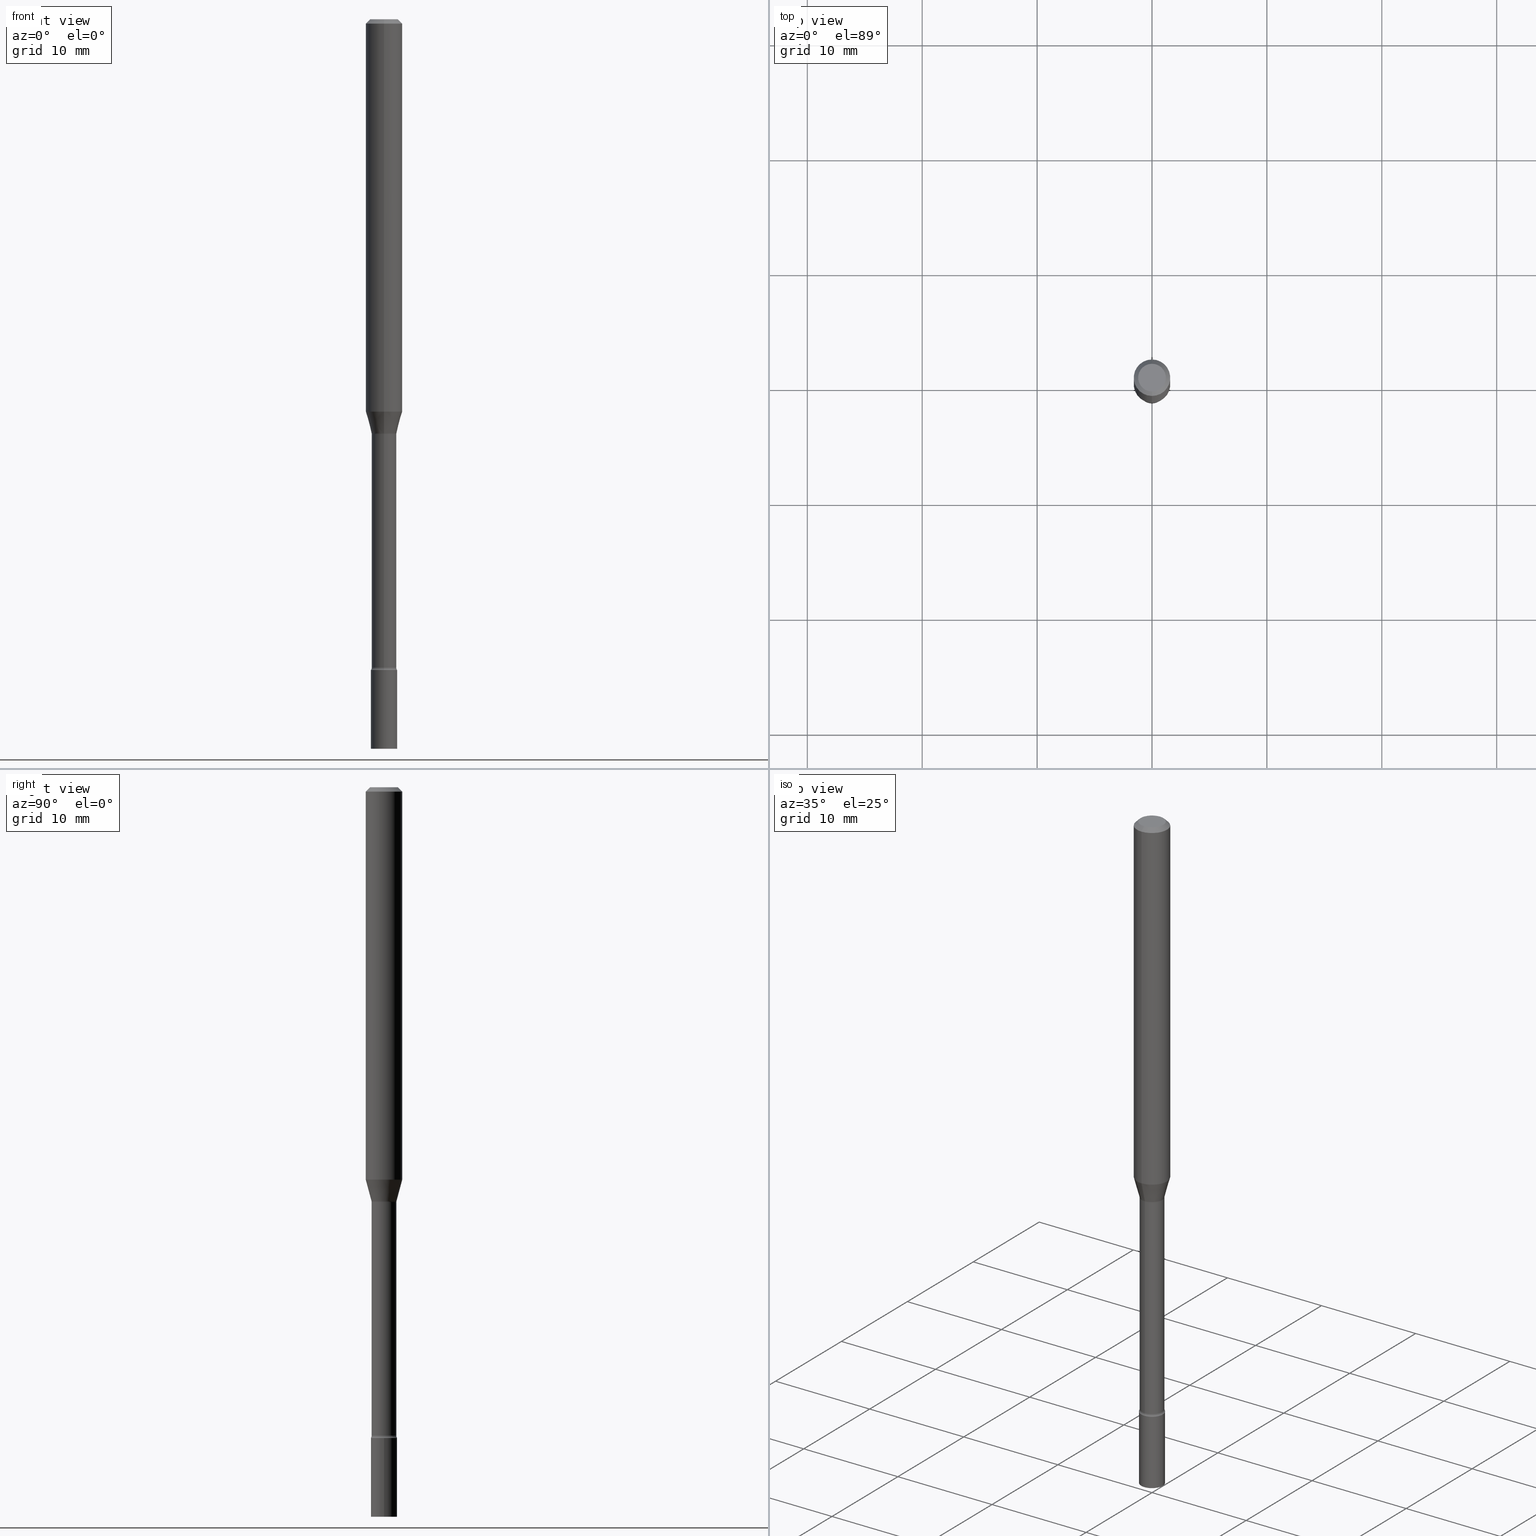
[diagram: canonical four-view strip — front | top / right | iso, engineering-drawing reading convention]
A machine part, canonical four-view strip (front | top / right | iso — engineering-drawing reading convention). The complete STEP part file that produces these views, byte-faithful:
ISO-10303-21;
HEADER;
FILE_DESCRIPTION (( 'STEP AP203' ),
    '1' );
FILE_NAME ('09878.STEP',
    '2024-03-09T02:41:51',
    ( '' ),
    ( '' ),
    'SwSTEP 2.0',
    'SolidWorks 2023',
    '' );
FILE_SCHEMA (( 'CONFIG_CONTROL_DESIGN' ));
ENDSEC;

DATA;
#1 = AXIS2_PLACEMENT_3D ( 'NONE', #269, #473, #228 ) ;
#2 = CARTESIAN_POINT ( 'NONE',  ( 0.04499999999999999833, -3.142333204958819823E-16, 2.194279549108170967E-30 ) ) ;
#3 = AXIS2_PLACEMENT_3D ( 'NONE', #467, #145, #270 ) ;
#4 = CARTESIAN_POINT ( 'NONE',  ( 3.668081873827822667E-31, -5.237395767534955229E-17, -0.01500000000000003067 ) ) ;
#5 = CARTESIAN_POINT ( 'NONE',  ( 3.005595772265770868E-16, 0.04229999999999502908, -1.421974787463811563 ) ) ;
#6 = DIRECTION ( 'NONE',  ( -2.438088387897960049E-29, 3.491481338843145188E-15, 1.000000000000000000 ) ) ;
#7 = APPROVAL ( #96, 'UNSPECIFIED' ) ;
#8 = ORIENTED_EDGE ( 'NONE', *, *, #193, .F. ) ;
#9 = DIRECTION ( 'NONE',  ( -6.982962677686265133E-15, -1.000000000000000000, 6.381165607227957288E-15 ) ) ;
#10 = ORIENTED_EDGE ( 'NONE', *, *, #215, .F. ) ;
#11 = CARTESIAN_POINT ( 'NONE',  ( 3.477279961957444351E-29, -4.964963155602911741E-15, -1.421974787463811118 ) ) ;
#12 = AXIS2_PLACEMENT_3D ( 'NONE', #69, #461, #104 ) ;
#13 = AXIS2_PLACEMENT_3D ( 'NONE', #112, #309, #503 ) ;
#14 = ORIENTED_EDGE ( 'NONE', *, *, #28, .T. ) ;
#15 = EDGE_CURVE ( 'NONE', #20, #485, #248, .T. ) ;
#16 = EDGE_CURVE ( 'NONE', #274, #414, #48, .T. ) ;
#17 = EDGE_LOOP ( 'NONE', ( #314, #519 ) ) ;
#18 = CARTESIAN_POINT ( 'NONE',  ( -0.04499999999999999833, -7.937609135271993890E-15, -2.500000000000000000 ) ) ;
#19 = COORDINATED_UNIVERSAL_TIME_OFFSET ( 5, 0, .BEHIND. ) ;
#20 = VERTEX_POINT ( 'NONE', #362 ) ;
#21 = CC_DESIGN_APPROVAL ( #23, ( #124 ) ) ;
#22 = APPROVAL_DATE_TIME ( #412, #7 ) ;
#23 = APPROVAL ( #243, 'UNSPECIFIED' ) ;
#24 = CARTESIAN_POINT ( 'NONE',  ( 3.477394985924490148E-29, -4.964798434735345074E-15, -1.421974787463811118 ) ) ;
#25 = FACE_OUTER_BOUND ( 'NONE', #361, .T. ) ;
#26 = CIRCLE ( 'NONE', #227, 0.06250000000000000000 ) ;
#27 = EDGE_CURVE ( 'NONE', #88, #299, #133, .T. ) ;
#28 = EDGE_CURVE ( 'NONE', #291, #485, #159, .T. ) ;
#29 = FACE_OUTER_BOUND ( 'NONE', #49, .T. ) ;
#30 = CYLINDRICAL_SURFACE ( 'NONE', #304, 0.04499999999999999833 ) ;
#31 = CARTESIAN_POINT ( 'NONE',  ( 3.668081873827822667E-31, -5.237395767534955229E-17, -0.01500000000000003067 ) ) ;
#32 = APPLICATION_CONTEXT ( 'configuration controlled 3d designs of mechanical parts and assemblies' ) ;
#33 = ORIENTED_EDGE ( 'NONE', *, *, #452, .F. ) ;
#34 = CARTESIAN_POINT ( 'NONE',  ( -2.953793212660942943E-16, -0.04230000000000496557, -1.421974787463810896 ) ) ;
#35 =( NAMED_UNIT ( * ) SI_UNIT ( $, .STERADIAN. ) SOLID_ANGLE_UNIT ( ) );
#36 = ORIENTED_EDGE ( 'NONE', *, *, #469, .F. ) ;
#37 = CIRCLE ( 'NONE', #442, 0.04499999999999999833 ) ;
#38 = AXIS2_PLACEMENT_3D ( 'NONE', #347, #313, #93 ) ;
#39 = DIRECTION ( 'NONE',  ( -6.982962677686265133E-15, -1.000000000000000000, 6.381165607227957288E-15 ) ) ;
#40 = FACE_OUTER_BOUND ( 'NONE', #450, .T. ) ;
#41 = CARTESIAN_POINT ( 'NONE',  ( 5.453215052424018458E-29, -7.786261707735284589E-15, -2.229999999999999982 ) ) ;
#42 = EDGE_CURVE ( 'NONE', #409, #428, #276, .T. ) ;
#43 = CLOSED_SHELL ( 'NONE', ( #180, #53, #234, #476 ) ) ;
#44 = CARTESIAN_POINT ( 'NONE',  ( -4.364351673553916201E-16, -0.06250000000000000000, 2.182248236472893667E-16 ) ) ;
#45 = CONICAL_SURFACE ( 'NONE', #384, 0.04281111260566398957, 0.2617993877991505736 ) ;
#46 = EDGE_CURVE ( 'NONE', #478, #472, #356, .T. ) ;
#47 = PLANE ( 'NONE',  #187 ) ;
#48 = LINE ( 'NONE', #174, #171 ) ;
#49 = EDGE_LOOP ( 'NONE', ( #211, #80, #297, #116 ) ) ;
#50 = MECHANICAL_CONTEXT ( 'NONE', #185, 'mechanical' ) ;
#51 = CARTESIAN_POINT ( 'NONE',  ( -0.04499999999999999833, 3.197442310920450718E-16, -2.213520790614707560E-30 ) ) ;
#52 = DESIGN_CONTEXT ( 'detailed design', #32, 'design' ) ;
#53 = ADVANCED_FACE ( 'NONE', ( #484 ), #439, .T. ) ;
#54 = CALENDAR_DATE ( 2024, 8, 3 ) ;
#55 = DIRECTION ( 'NONE',  ( -2.445468806185136877E-29, 3.491481338843145188E-15, 1.000000000000000000 ) ) ;
#56 = AXIS2_PLACEMENT_3D ( 'NONE', #232, #477, #119 ) ;
#57 = CARTESIAN_POINT ( 'NONE',  ( 0.000000000000000000, 0.000000000000000000, 0.000000000000000000 ) ) ;
#58 = CC_DESIGN_PERSON_AND_ORGANIZATION_ASSIGNMENT ( #199, #315, ( #453 ) ) ;
#59 = DATE_TIME_ROLE ( 'classification_date' ) ;
#60 = ORIENTED_EDGE ( 'NONE', *, *, #16, .T. ) ;
#61 = DIRECTION ( 'NONE',  ( 1.000000000000000000, -7.105427357601001070E-15, 4.926316927166976065E-29 ) ) ;
#62 = COORDINATED_UNIVERSAL_TIME_OFFSET ( 5, 0, .BEHIND. ) ;
#63 = EDGE_CURVE ( 'NONE', #134, #497, #144, .T. ) ;
#64 = CARTESIAN_POINT ( 'NONE',  ( 4.440892098500956497E-16, 0.06249999999999533706, -1.344612573687109514 ) ) ;
#65 = AXIS2_PLACEMENT_3D ( 'NONE', #288, #277, #481 ) ;
#66 = SECURITY_CLASSIFICATION ( '', '', #255 ) ;
#67 = DIRECTION ( 'NONE',  ( -2.445387915885210370E-29, 3.491597178356629868E-15, 1.000000000000000000 ) ) ;
#68 = DIRECTION ( 'NONE',  ( -2.445387915885210370E-29, 3.491597178356629868E-15, 1.000000000000000000 ) ) ;
#69 = CARTESIAN_POINT ( 'NONE',  ( 3.142333204959364630E-16, 0.04499999999999221290, -2.230000000000000426 ) ) ;
#70 = DIRECTION ( 'NONE',  ( 4.937700262164548042E-15, 0.7071067811865451302, -0.7071067811865499042 ) ) ;
#71 = ADVANCED_FACE ( 'NONE', ( #492 ), #207, .T. ) ;
#72 = CARTESIAN_POINT ( 'NONE',  ( -2.989484015155409328E-16, -0.04281111260566893700, -1.418092501787272974 ) ) ;
#73 = CARTESIAN_POINT ( 'NONE',  ( 3.668081873827822667E-31, -5.237395767534955229E-17, -0.01500000000000003067 ) ) ;
#74 = CONICAL_SURFACE ( 'NONE', #204, 0.06250000000000000000, 0.7853981633974483900 ) ;
#75 = ADVANCED_FACE ( 'NONE', ( #247 ), #410, .T. ) ;
#76 = ORIENTED_EDGE ( 'NONE', *, *, #355, .F. ) ;
#77 = DIRECTION ( 'NONE',  ( 1.000000000000000000, 0.000000000000000000, 0.000000000000000000 ) ) ;
#78 = DIRECTION ( 'NONE',  ( -2.445387915885210370E-29, 3.491597178356629868E-15, 1.000000000000000000 ) ) ;
#79 = DIRECTION ( 'NONE',  ( -1.000000000000000000, 6.982962677686265922E-15, -4.876176775795935793E-29 ) ) ;
#80 = ORIENTED_EDGE ( 'NONE', *, *, #334, .T. ) ;
#81 = AXIS2_PLACEMENT_3D ( 'NONE', #225, #421, #382 ) ;
#82 = LOCAL_TIME ( 21, 41, 51.00000000000000000, #178 ) ;
#83 = CARTESIAN_POINT ( 'NONE',  ( 4.071409875905721427E-16, 0.05729999999999503546, -1.421974787463811563 ) ) ;
#84 = ORIENTED_EDGE ( 'NONE', *, *, #279, .T. ) ;
#85 = DIMENSIONAL_EXPONENTS ( 1.000000000000000000, 0.000000000000000000, 0.000000000000000000, 0.000000000000000000, 0.000000000000000000, 0.000000000000000000, 0.000000000000000000 ) ;
#86 = CALENDAR_DATE ( 2024, 8, 3 ) ;
#87 = AXIS2_PLACEMENT_3D ( 'NONE', #271, #67, #429 ) ;
#88 = VERTEX_POINT ( 'NONE', #18 ) ;
#89 = CIRCLE ( 'NONE', #130, 0.01499999999999998557 ) ;
#90 = ORIENTED_EDGE ( 'NONE', *, *, #164, .T. ) ;
#91 = ORIENTED_EDGE ( 'NONE', *, *, #28, .F. ) ;
#92 = ORIENTED_EDGE ( 'NONE', *, *, #246, .F. ) ;
#93 = DIRECTION ( 'NONE',  ( 1.000000000000000000, -6.982962677686246989E-15, 0.000000000000000000 ) ) ;
#94 = ORIENTED_EDGE ( 'NONE', *, *, #343, .T. ) ;
#95 = ORIENTED_EDGE ( 'NONE', *, *, #229, .T. ) ;
#96 = APPROVAL_STATUS ( 'not_yet_approved' ) ;
#97 = CIRCLE ( 'NONE', #448, 0.04281111260566398957 ) ;
#98 = APPROVAL_STATUS ( 'not_yet_approved' ) ;
#99 = CC_DESIGN_DATE_AND_TIME_ASSIGNMENT ( #170, #375, ( #124 ) ) ;
#100 = DIRECTION ( 'NONE',  ( 2.445387915885210370E-29, -3.491597178356629868E-15, -1.000000000000000000 ) ) ;
#101 = CIRCLE ( 'NONE', #391, 0.01500000000000001853 ) ;
#102 = CIRCLE ( 'NONE', #470, 0.06250000000000000000 ) ;
#103 = TOROIDAL_SURFACE ( 'NONE', #408, 0.05730000000000000371, 0.01500000000000002373 ) ;
#104 = DIRECTION ( 'NONE',  ( -6.982962677686265922E-15, -1.000000000000000000, 3.491597178356629473E-15 ) ) ;
#105 = CARTESIAN_POINT ( 'NONE',  ( 5.432220289863311554E-29, -7.756284764919363246E-15, -2.221414547187247290 ) ) ;
#106 = EDGE_CURVE ( 'NONE', #88, #478, #37, .T. ) ;
#107 = EDGE_CURVE ( 'NONE', #485, #20, #165, .T. ) ;
#108 = EDGE_LOOP ( 'NONE', ( #300, #479, #76, #244 ) ) ;
#109 = CARTESIAN_POINT ( 'NONE',  ( 0.000000000000000000, 0.000000000000000000, 0.000000000000000000 ) ) ;
#110 = DIRECTION ( 'NONE',  ( -2.445387915885210370E-29, 3.491597178356629868E-15, 1.000000000000000000 ) ) ;
#111 = ORIENTED_EDGE ( 'NONE', *, *, #289, .F. ) ;
#112 = CARTESIAN_POINT ( 'NONE',  ( 0.000000000000000000, 0.000000000000000000, 0.000000000000000000 ) ) ;
#113 = DIRECTION ( 'NONE',  ( 1.000000000000000000, -6.982962677686246989E-15, 0.000000000000000000 ) ) ;
#114 = AXIS2_PLACEMENT_3D ( 'NONE', #11, #486, #281 ) ;
#115 = DIRECTION ( 'NONE',  ( 2.445387915885210370E-29, -3.491597178356629868E-15, -1.000000000000000000 ) ) ;
#116 = ORIENTED_EDGE ( 'NONE', *, *, #179, .F. ) ;
#117 = DIRECTION ( 'NONE',  ( -2.445468806185136597E-29, 3.491481338843145583E-15, 1.000000000000000000 ) ) ;
#118 = APPROVAL_DATE_TIME ( #132, #23 ) ;
#119 = DIRECTION ( 'NONE',  ( 1.000000000000000000, -6.982962677686269077E-15, 0.000000000000000000 ) ) ;
#120 = AXIS2_PLACEMENT_3D ( 'NONE', #457, #68, #463 ) ;
#121 = CONICAL_SURFACE ( 'NONE', #219, 0.06250000000000000000, 0.7853981633974483900 ) ;
#122 = EDGE_CURVE ( 'NONE', #400, #274, #97, .T. ) ;
#123 = DIRECTION ( 'NONE',  ( 1.839019923739602287E-15, 0.2588190451025252359, 0.9659258262890670910 ) ) ;
#124 = PRODUCT_DEFINITION ( 'UNKNOWN', '', #443, #52 ) ;
#125 = COORDINATED_UNIVERSAL_TIME_OFFSET ( 5, 0, .BEHIND. ) ;
#126 = ORIENTED_EDGE ( 'NONE', *, *, #193, .T. ) ;
#127 = ORIENTED_EDGE ( 'NONE', *, *, #310, .F. ) ;
#128 = CARTESIAN_POINT ( 'NONE',  ( 0.04499999999999999833, -9.042936667603745051E-15, -2.500000000000000000 ) ) ;
#129 = ORIENTED_EDGE ( 'NONE', *, *, #511, .F. ) ;
#130 = AXIS2_PLACEMENT_3D ( 'NONE', #455, #61, #252 ) ;
#131 = VERTEX_POINT ( 'NONE', #424 ) ;
#132 = DATE_AND_TIME ( #54, #482 ) ;
#133 = LINE ( 'NONE', #51, #407 ) ;
#134 = VERTEX_POINT ( 'NONE', #380 ) ;
#135 = EDGE_LOOP ( 'NONE', ( #387, #363 ) ) ;
#136 = EDGE_LOOP ( 'NONE', ( #92, #444, #126, #216 ) ) ;
#137 = CARTESIAN_POINT ( 'NONE',  ( 7.069227293803552438E-46, -1.009365177273772125E-31, -2.890840855097850501E-17 ) ) ;
#138 = AXIS2_PLACEMENT_3D ( 'NONE', #447, #389, #9 ) ;
#139 = ADVANCED_FACE ( 'NONE', ( #160 ), #397, .F. ) ;
#140 = ORIENTED_EDGE ( 'NONE', *, *, #122, .T. ) ;
#141 = DIRECTION ( 'NONE',  ( -2.445468806185136597E-29, 3.491481338843145583E-15, 1.000000000000000000 ) ) ;
#142 = LINE ( 'NONE', #336, #186 ) ;
#143 = PERSON_AND_ORGANIZATION ( #267, #393 ) ;
#144 = LINE ( 'NONE', #459, #196 ) ;
#145 = DIRECTION ( 'NONE',  ( 2.445387915885210370E-29, -3.491597178356629473E-15, -1.000000000000000000 ) ) ;
#146 = DIRECTION ( 'NONE',  ( 1.000000000000000000, -6.982962677686266711E-15, 4.876176775795935793E-29 ) ) ;
#147 = EDGE_CURVE ( 'NONE', #497, #251, #325, .T. ) ;
#148 = EDGE_LOOP ( 'NONE', ( #140, #60, #163, #500 ) ) ;
#149 = CYLINDRICAL_SURFACE ( 'NONE', #275, 0.04499999999999999833 ) ;
#150 = AXIS2_PLACEMENT_3D ( 'NONE', #31, #78, #237 ) ;
#151 = EDGE_LOOP ( 'NONE', ( #286, #345, #129, #127 ) ) ;
#152 = APPROVAL ( #98, 'UNSPECIFIED' ) ;
#153 = CARTESIAN_POINT ( 'NONE',  ( -4.364351673553584879E-16, -0.06250000000000466294, -1.344612573687108847 ) ) ;
#154 = DIRECTION ( 'NONE',  ( -6.982962677686266711E-15, -1.000000000000000000, 6.458269488567978448E-15 ) ) ;
#155 = UNCERTAINTY_MEASURE_WITH_UNIT (LENGTH_MEASURE( 1.000000000000000082E-05 ), #322, 'distance_accuracy_value', 'NONE');
#156 = CARTESIAN_POINT ( 'NONE',  ( 3.467786267478024003E-29, -4.951407777889136933E-15, -1.418092501787273196 ) ) ;
#157 = DIRECTION ( 'NONE',  ( -1.807323732225332111E-15, -0.2588190451025184635, 0.9659258262890689783 ) ) ;
#158 = FACE_OUTER_BOUND ( 'NONE', #520, .T. ) ;
#159 = CIRCLE ( 'NONE', #65, 0.01499999999999998557 ) ;
#160 = FACE_OUTER_BOUND ( 'NONE', #483, .T. ) ;
#161 = ORIENTED_EDGE ( 'NONE', *, *, #289, .T. ) ;
#162 = ORIENTED_EDGE ( 'NONE', *, *, #46, .T. ) ;
#163 = ORIENTED_EDGE ( 'NONE', *, *, #357, .F. ) ;
#164 = EDGE_CURVE ( 'NONE', #440, #240, #501, .T. ) ;
#165 = CIRCLE ( 'NONE', #332, 0.04499999999999999833 ) ;
#166 = AXIS2_PLACEMENT_3D ( 'NONE', #105, #411, #254 ) ;
#167 = DIRECTION ( 'NONE',  ( -2.445468806185136877E-29, 3.491481338843145188E-15, 1.000000000000000000 ) ) ;
#168 = PERSON_AND_ORGANIZATION ( #267, #393 ) ;
#169 = DIRECTION ( 'NONE',  ( 1.000000000000000000, -6.982962677686265922E-15, 4.876176775795935793E-29 ) ) ;
#170 = DATE_AND_TIME ( #86, #462 ) ;
#171 = VECTOR ( 'NONE', #123, 39.37007874015748143 ) ;
#172 = APPLICATION_PROTOCOL_DEFINITION ( 'international standard', 'config_control_design', 1994, #185 ) ;
#173 = APPROVAL_PERSON_ORGANIZATION ( #168, #23, #320 ) ;
#174 = CARTESIAN_POINT ( 'NONE',  ( 3.041912507176566342E-16, 0.04281111260565903520, -1.418092501787273418 ) ) ;
#175 =( GEOMETRIC_REPRESENTATION_CONTEXT ( 3 ) GLOBAL_UNCERTAINTY_ASSIGNED_CONTEXT ( ( #155 ) ) GLOBAL_UNIT_ASSIGNED_CONTEXT ( ( #322, #518, #35 ) ) REPRESENTATION_CONTEXT ( 'NONE', 'WORKASPACE' ) );
#176 = ORIENTED_EDGE ( 'NONE', *, *, #328, .T. ) ;
#177 = FACE_OUTER_BOUND ( 'NONE', #148, .T. ) ;
#178 = COORDINATED_UNIVERSAL_TIME_OFFSET ( 5, 0, .BEHIND. ) ;
#179 = EDGE_CURVE ( 'NONE', #240, #428, #102, .T. ) ;
#180 = ADVANCED_FACE ( 'NONE', ( #376 ), #30, .T. ) ;
#181 = VECTOR ( 'NONE', #70, 39.37007874015748143 ) ;
#182 = ORIENTED_EDGE ( 'NONE', *, *, #246, .T. ) ;
#183 = PERSON_AND_ORGANIZATION_ROLE ( 'creator' ) ;
#184 = PLANE ( 'NONE',  #12 ) ;
#185 = APPLICATION_CONTEXT ( 'configuration controlled 3d designs of mechanical parts and assemblies' ) ;
#186 = VECTOR ( 'NONE', #502, 39.37007874015748143 ) ;
#187 = AXIS2_PLACEMENT_3D ( 'NONE', #353, #273, #79 ) ;
#188 = CARTESIAN_POINT ( 'NONE',  ( 6.113672015462842613E-29, -8.728703347107864943E-15, -2.500000000000000000 ) ) ;
#189 = CARTESIAN_POINT ( 'NONE',  ( 5.432220289863311554E-29, -7.756284764919363246E-15, -2.221414547187247290 ) ) ;
#190 = LINE ( 'NONE', #422, #494 ) ;
#191 = MANIFOLD_SOLID_BREP ( 'Body-Move/Copy2[1]', #43 ) ;
#192 = EDGE_LOOP ( 'NONE', ( #256, #95, #321, #194 ) ) ;
#193 = EDGE_CURVE ( 'NONE', #400, #251, #218, .T. ) ;
#194 = ORIENTED_EDGE ( 'NONE', *, *, #42, .F. ) ;
#195 = PERSON_AND_ORGANIZATION_ROLE ( 'creator' ) ;
#196 = VECTOR ( 'NONE', #250, 39.37007874015748143 ) ;
#197 = LOCAL_TIME ( 21, 41, 51.00000000000000000, #19 ) ;
#198 = CARTESIAN_POINT ( 'NONE',  ( -2.989484015155409328E-16, -0.04281111260566893700, -1.418092501787272974 ) ) ;
#199 = PERSON_AND_ORGANIZATION ( #267, #393 ) ;
#200 = DIRECTION ( 'NONE',  ( -2.445468806185136597E-29, 3.491481338843145583E-15, 1.000000000000000000 ) ) ;
#201 = ADVANCED_FACE ( 'NONE', ( #512 ), #184, .F. ) ;
#202 = MANIFOLD_SOLID_BREP ( 'Body-Move/Copy2[2]', #293 ) ;
#203 = AXIS2_PLACEMENT_3D ( 'NONE', #41, #319, #406 ) ;
#204 = AXIS2_PLACEMENT_3D ( 'NONE', #425, #115, #381 ) ;
#205 = CARTESIAN_POINT ( 'NONE',  ( 5.453395437792854252E-29, -7.786003385620215150E-15, -2.229999999999999982 ) ) ;
#206 = FACE_OUTER_BOUND ( 'NONE', #368, .T. ) ;
#207 = CYLINDRICAL_SURFACE ( 'NONE', #317, 0.04230000000000006671 ) ;
#208 =( LENGTH_UNIT ( ) NAMED_UNIT ( * ) SI_UNIT ( $, .METRE. ) );
#209 = DIRECTION ( 'NONE',  ( -6.982962677686265922E-15, -1.000000000000000000, 4.370956789862821150E-15 ) ) ;
#210 = CIRCLE ( 'NONE', #235, 0.04281111260566398957 ) ;
#211 = ORIENTED_EDGE ( 'NONE', *, *, #229, .F. ) ;
#212 = ADVANCED_BREP_SHAPE_REPRESENTATION ( '09878', ( #191, #202, #242 ), #175 ) ;
#213 = DIRECTION ( 'NONE',  ( -2.445387915885210370E-29, 3.491597178356629868E-15, 1.000000000000000000 ) ) ;
#214 = APPROVAL_DATE_TIME ( #298, #152 ) ;
#215 = EDGE_CURVE ( 'NONE', #131, #440, #324, .T. ) ;
#216 = ORIENTED_EDGE ( 'NONE', *, *, #511, .T. ) ;
#217 = PERSON_AND_ORGANIZATION ( #267, #393 ) ;
#218 = CIRCLE ( 'NONE', #352, 0.01500000000000001853 ) ;
#219 = AXIS2_PLACEMENT_3D ( 'NONE', #4, #100, #471 ) ;
#220 = DIRECTION ( 'NONE',  ( -6.982962677686265922E-15, -1.000000000000000000, 3.483106191921935554E-15 ) ) ;
#221 = DIRECTION ( 'NONE',  ( -6.982962677686265922E-15, -1.000000000000000000, 4.370956789862821150E-15 ) ) ;
#222 = CARTESIAN_POINT ( 'NONE',  ( 3.840629472727447874E-16, 0.04749999999999999362, -1.947592745229183872E-16 ) ) ;
#223 = PRODUCT_RELATED_PRODUCT_CATEGORY ( 'detail', '', ( #453 ) ) ;
#224 = LINE ( 'NONE', #505, #516 ) ;
#225 = CARTESIAN_POINT ( 'NONE',  ( 7.069227293803552438E-46, -1.009365177273772125E-31, -2.890840855097850501E-17 ) ) ;
#226 = FACE_OUTER_BOUND ( 'NONE', #17, .T. ) ;
#227 = AXIS2_PLACEMENT_3D ( 'NONE', #395, #318, #209 ) ;
#228 = DIRECTION ( 'NONE',  ( -6.982962677686265922E-15, -1.000000000000000000, 3.491597178356629868E-15 ) ) ;
#229 = EDGE_CURVE ( 'NONE', #414, #240, #224, .T. ) ;
#230 = CARTESIAN_POINT ( 'NONE',  ( 3.467786267478024003E-29, -4.951407777889136933E-15, -1.418092501787273196 ) ) ;
#231 = APPLICATION_PROTOCOL_DEFINITION ( 'international standard', 'config_control_design', 1994, #32 ) ;
#232 = CARTESIAN_POINT ( 'NONE',  ( 5.453395437792854252E-29, -7.786003385620215150E-15, -2.229999999999999982 ) ) ;
#233 = CARTESIAN_POINT ( 'NONE',  ( 3.477394985924490148E-29, -4.964798434735345074E-15, -1.421974787463811118 ) ) ;
#234 = ADVANCED_FACE ( 'NONE', ( #25 ), #149, .T. ) ;
#235 = AXIS2_PLACEMENT_3D ( 'NONE', #474, #272, #39 ) ;
#236 = AXIS2_PLACEMENT_3D ( 'NONE', #24, #344, #510 ) ;
#237 = DIRECTION ( 'NONE',  ( -6.982962677686265922E-15, -1.000000000000000000, 3.483106191921935554E-15 ) ) ;
#238 = EDGE_CURVE ( 'NONE', #291, #134, #282, .T. ) ;
#239 = DIRECTION ( 'NONE',  ( -2.445387915885210370E-29, 3.491597178356629473E-15, 1.000000000000000000 ) ) ;
#240 = VERTEX_POINT ( 'NONE', #466 ) ;
#241 = ORIENTED_EDGE ( 'NONE', *, *, #340, .F. ) ;
#242 = AXIS2_PLACEMENT_3D ( 'NONE', #441, #401, #77 ) ;
#243 = APPROVAL_STATUS ( 'not_yet_approved' ) ;
#244 = ORIENTED_EDGE ( 'NONE', *, *, #46, .F. ) ;
#245 = ORIENTED_EDGE ( 'NONE', *, *, #63, .F. ) ;
#246 = EDGE_CURVE ( 'NONE', #274, #497, #101, .T. ) ;
#247 = FACE_OUTER_BOUND ( 'NONE', #192, .T. ) ;
#248 = CIRCLE ( 'NONE', #203, 0.04499999999999999833 ) ;
#249 = CALENDAR_DATE ( 2024, 8, 3 ) ;
#250 = DIRECTION ( 'NONE',  ( -2.445387915885210370E-29, 3.491597178356629473E-15, 1.000000000000000000 ) ) ;
#251 = VERTEX_POINT ( 'NONE', #34 ) ;
#252 = DIRECTION ( 'NONE',  ( 7.105427357601001859E-15, 1.000000000000000000, 0.000000000000000000 ) ) ;
#253 = PERSON_AND_ORGANIZATION_ROLE ( 'classification_officer' ) ;
#254 = DIRECTION ( 'NONE',  ( -6.982962677686266711E-15, -1.000000000000000000, 6.458269488567978448E-15 ) ) ;
#255 = SECURITY_CLASSIFICATION_LEVEL ( 'unclassified' ) ;
#256 = ORIENTED_EDGE ( 'NONE', *, *, #357, .T. ) ;
#257 = DIRECTION ( 'NONE',  ( 1.000000000000000000, -6.982962677686266711E-15, 4.876176775795935793E-29 ) ) ;
#258 = ORIENTED_EDGE ( 'NONE', *, *, #147, .F. ) ;
#259 = AXIS2_PLACEMENT_3D ( 'NONE', #205, #6, #169 ) ;
#260 = CYLINDRICAL_SURFACE ( 'NONE', #13, 0.06250000000000000000 ) ;
#261 = ORIENTED_EDGE ( 'NONE', *, *, #147, .T. ) ;
#262 = DIRECTION ( 'NONE',  ( -6.982962677686265133E-15, -1.000000000000000000, 6.381165607227957288E-15 ) ) ;
#263 = DIRECTION ( 'NONE',  ( -6.982962677686266711E-15, -1.000000000000000000, 3.491597178356630262E-15 ) ) ;
#264 = ORIENTED_EDGE ( 'NONE', *, *, #15, .T. ) ;
#265 = ORIENTED_EDGE ( 'NONE', *, *, #266, .F. ) ;
#266 = EDGE_CURVE ( 'NONE', #274, #400, #210, .T. ) ;
#267 = PERSON ( 'UNSPECIFIED', 'UNSPECIFIED', 'UNSPECIFIED', ('UNSPECIFIED'), ('UNSPECIFIED'), ('UNSPECIFIED') ) ;
#268 = CIRCLE ( 'NONE', #296, 0.04749999999999999362 ) ;
#269 = CARTESIAN_POINT ( 'NONE',  ( 5.432399980752294225E-29, -7.756027437338970612E-15, -2.221414547187247734 ) ) ;
#270 = DIRECTION ( 'NONE',  ( 6.982962677686265922E-15, 1.000000000000000000, -3.491597178356629473E-15 ) ) ;
#271 = CARTESIAN_POINT ( 'NONE',  ( 3.477279961957444351E-29, -4.964963155602911741E-15, -1.421974787463811118 ) ) ;
#272 = DIRECTION ( 'NONE',  ( -2.445387915885210370E-29, 3.491597178356629868E-15, 1.000000000000000000 ) ) ;
#273 = DIRECTION ( 'NONE',  ( 2.438088387897960049E-29, -3.491481338843145188E-15, -1.000000000000000000 ) ) ;
#274 = VERTEX_POINT ( 'NONE', #432 ) ;
#275 = AXIS2_PLACEMENT_3D ( 'NONE', #495, #141, #257 ) ;
#276 = LINE ( 'NONE', #44, #383 ) ;
#277 = DIRECTION ( 'NONE',  ( -1.000000000000000000, 6.982962677686265922E-15, -4.883557194083112340E-29 ) ) ;
#278 = PRODUCT_DEFINITION_SHAPE ( 'NONE', 'NONE',  #124 ) ;
#279 = EDGE_CURVE ( 'NONE', #428, #240, #365, .T. ) ;
#280 = EDGE_CURVE ( 'NONE', #400, #409, #392, .T. ) ;
#281 = DIRECTION ( 'NONE',  ( -6.982962677686266711E-15, -1.000000000000000000, 6.458269488567998169E-15 ) ) ;
#282 = CIRCLE ( 'NONE', #374, 0.04230000000000012916 ) ;
#283 = EDGE_LOOP ( 'NONE', ( #33, #241, #90, #445 ) ) ;
#284 = LOCAL_TIME ( 21, 41, 51.00000000000000000, #62 ) ;
#285 = FACE_OUTER_BOUND ( 'NONE', #331, .T. ) ;
#286 = ORIENTED_EDGE ( 'NONE', *, *, #238, .T. ) ;
#287 = CARTESIAN_POINT ( 'NONE',  ( 0.000000000000000000, 0.000000000000000000, 0.000000000000000000 ) ) ;
#288 = CARTESIAN_POINT ( 'NONE',  ( -4.001237614313694707E-16, -0.05730000000000787241, -2.221414547187247290 ) ) ;
#289 = EDGE_CURVE ( 'NONE', #299, #472, #504, .T. ) ;
#290 = DIRECTION ( 'NONE',  ( -6.982962677686266711E-15, -1.000000000000000000, 3.491597178356630262E-15 ) ) ;
#291 = VERTEX_POINT ( 'NONE', #435 ) ;
#292 = CALENDAR_DATE ( 2024, 8, 3 ) ;
#293 = CLOSED_SHELL ( 'NONE', ( #509, #379, #308, #396, #75, #490, #437, #438, #367, #372, #201, #139, #71, #468 ) ) ;
#294 = DIRECTION ( 'NONE',  ( -6.982962677686266711E-15, -1.000000000000000000, 3.491597178356630262E-15 ) ) ;
#295 = APPROVAL_ROLE ( '' ) ;
#296 = AXIS2_PLACEMENT_3D ( 'NONE', #137, #377, #294 ) ;
#297 = ORIENTED_EDGE ( 'NONE', *, *, #42, .T. ) ;
#298 = DATE_AND_TIME ( #301, #82 ) ;
#299 = VERTEX_POINT ( 'NONE', #394 ) ;
#300 = ORIENTED_EDGE ( 'NONE', *, *, #469, .T. ) ;
#301 = CALENDAR_DATE ( 2024, 8, 3 ) ;
#302 = CARTESIAN_POINT ( 'NONE',  ( -4.364351673553912750E-16, -0.06250000000000005551, -0.01499999999999981209 ) ) ;
#303 = DIRECTION ( 'NONE',  ( -6.982962677686267499E-15, -1.000000000000000000, 0.000000000000000000 ) ) ;
#304 = AXIS2_PLACEMENT_3D ( 'NONE', #109, #338, #146 ) ;
#305 = APPROVAL_PERSON_ORGANIZATION ( #491, #152, #413 ) ;
#306 = FACE_OUTER_BOUND ( 'NONE', #326, .T. ) ;
#307 = DIRECTION ( 'NONE',  ( -2.445387915885210370E-29, 3.491597178356629868E-15, 1.000000000000000000 ) ) ;
#308 = ADVANCED_FACE ( 'NONE', ( #40 ), #341, .F. ) ;
#309 = DIRECTION ( 'NONE',  ( -2.445387915885210370E-29, 3.491597178356629868E-15, 1.000000000000000000 ) ) ;
#310 = EDGE_CURVE ( 'NONE', #291, #251, #142, .T. ) ;
#311 = ORIENTED_EDGE ( 'NONE', *, *, #280, .T. ) ;
#312 = CARTESIAN_POINT ( 'NONE',  ( 5.453215052424018458E-29, -7.786261707735284589E-15, -2.229999999999999982 ) ) ;
#313 = DIRECTION ( 'NONE',  ( -2.445468806185136597E-29, 3.491481338843145583E-15, 1.000000000000000000 ) ) ;
#314 = ORIENTED_EDGE ( 'NONE', *, *, #340, .T. ) ;
#315 = PERSON_AND_ORGANIZATION_ROLE ( 'design_owner' ) ;
#316 = DIRECTION ( 'NONE',  ( 1.000000000000000000, -6.982962677686269077E-15, 0.000000000000000000 ) ) ;
#317 = AXIS2_PLACEMENT_3D ( 'NONE', #287, #488, #290 ) ;
#318 = DIRECTION ( 'NONE',  ( -2.445387915885210370E-29, 3.491597178356629868E-15, 1.000000000000000000 ) ) ;
#319 = DIRECTION ( 'NONE',  ( -2.445387915885210370E-29, 3.491597178356629868E-15, 1.000000000000000000 ) ) ;
#320 = APPROVAL_ROLE ( '' ) ;
#321 = ORIENTED_EDGE ( 'NONE', *, *, #279, .F. ) ;
#322 =( CONVERSION_BASED_UNIT ( 'INCH', #364 ) LENGTH_UNIT ( ) NAMED_UNIT ( #85 ) );
#323 = ORIENTED_EDGE ( 'NONE', *, *, #107, .T. ) ;
#324 = CIRCLE ( 'NONE', #81, 0.04749999999999999362 ) ;
#325 = CIRCLE ( 'NONE', #87, 0.04229999999999999732 ) ;
#326 = EDGE_LOOP ( 'NONE', ( #351, #373, #311, #489 ) ) ;
#327 = CONICAL_SURFACE ( 'NONE', #138, 0.04281111260566398957, 0.2617993877991505736 ) ;
#328 = EDGE_CURVE ( 'NONE', #134, #291, #480, .T. ) ;
#329 = ORIENTED_EDGE ( 'NONE', *, *, #238, .F. ) ;
#330 = CC_DESIGN_PERSON_AND_ORGANIZATION_ASSIGNMENT ( #405, #195, ( #124 ) ) ;
#331 = EDGE_LOOP ( 'NONE', ( #265, #182, #261, #8 ) ) ;
#332 = AXIS2_PLACEMENT_3D ( 'NONE', #312, #508, #426 ) ;
#333 = AXIS2_PLACEMENT_3D ( 'NONE', #513, #110, #263 ) ;
#334 = EDGE_CURVE ( 'NONE', #414, #409, #449, .T. ) ;
#335 = ORIENTED_EDGE ( 'NONE', *, *, #328, .F. ) ;
#336 = CARTESIAN_POINT ( 'NONE',  ( -2.953793212661295465E-16, -0.04230000000000006671, 1.476945606444856848E-16 ) ) ;
#337 = PERSON_AND_ORGANIZATION ( #267, #393 ) ;
#338 = DIRECTION ( 'NONE',  ( -2.445468806185136597E-29, 3.491481338843145583E-15, 1.000000000000000000 ) ) ;
#339 = DIRECTION ( 'NONE',  ( -1.000000000000000000, 6.982962677686265922E-15, -4.883557194083112340E-29 ) ) ;
#340 = EDGE_CURVE ( 'NONE', #440, #131, #268, .T. ) ;
#341 = TOROIDAL_SURFACE ( 'NONE', #120, 0.05730000000000011473, 0.01499999999999998730 ) ;
#342 = CIRCLE ( 'NONE', #358, 0.04499999999999999833 ) ;
#343 = EDGE_CURVE ( 'NONE', #134, #20, #89, .T. ) ;
#344 = DIRECTION ( 'NONE',  ( -2.445387915885210370E-29, 3.491597178356629868E-15, 1.000000000000000000 ) ) ;
#345 = ORIENTED_EDGE ( 'NONE', *, *, #63, .T. ) ;
#346 = DIRECTION ( 'NONE',  ( -2.445387915885210370E-29, 3.491597178356629868E-15, 1.000000000000000000 ) ) ;
#347 = CARTESIAN_POINT ( 'NONE',  ( 6.113672015462842613E-29, -8.728703347107864943E-15, -2.500000000000000000 ) ) ;
#348 = CARTESIAN_POINT ( 'NONE',  ( -4.001237614313882555E-16, -0.05730000000000497196, -1.421974787463810896 ) ) ;
#349 = CARTESIAN_POINT ( 'NONE',  ( 5.453395437792854252E-29, -7.786003385620215150E-15, -2.229999999999999982 ) ) ;
#350 = FACE_OUTER_BOUND ( 'NONE', #151, .T. ) ;
#351 = ORIENTED_EDGE ( 'NONE', *, *, #16, .F. ) ;
#352 = AXIS2_PLACEMENT_3D ( 'NONE', #348, #339, #303 ) ;
#353 = CARTESIAN_POINT ( 'NONE',  ( 3.142333204959430697E-16, 0.04499999999999127615, -2.500000000000000000 ) ) ;
#354 = DIRECTION ( 'NONE',  ( 1.000000000000000000, -7.105427357601001070E-15, 4.926316927166976065E-29 ) ) ;
#355 = EDGE_CURVE ( 'NONE', #472, #299, #342, .T. ) ;
#356 = LINE ( 'NONE', #2, #418 ) ;
#357 = EDGE_CURVE ( 'NONE', #409, #414, #26, .T. ) ;
#358 = AXIS2_PLACEMENT_3D ( 'NONE', #349, #200, #316 ) ;
#359 = CARTESIAN_POINT ( 'NONE',  ( 0.04499999999999999833, -8.100236706116096837E-15, -2.229999999999999982 ) ) ;
#360 = ORIENTED_EDGE ( 'NONE', *, *, #343, .F. ) ;
#361 = EDGE_LOOP ( 'NONE', ( #402, #446, #162, #111 ) ) ;
#362 = CARTESIAN_POINT ( 'NONE',  ( 3.197442310920995032E-16, 0.04499999999999219208, -2.230000000000000426 ) ) ;
#363 = ORIENTED_EDGE ( 'NONE', *, *, #15, .F. ) ;
#364 = LENGTH_MEASURE_WITH_UNIT ( LENGTH_MEASURE( 0.02539999999999999897 ), #208 );
#365 = CIRCLE ( 'NONE', #150, 0.06250000000000000000 ) ;
#366 = CC_DESIGN_APPROVAL ( #152, ( #66 ) ) ;
#367 = ADVANCED_FACE ( 'NONE', ( #514 ), #121, .T. ) ;
#368 = EDGE_LOOP ( 'NONE', ( #36, #496 ) ) ;
#369 = DIRECTION ( 'NONE',  ( -6.982962677686265922E-15, -1.000000000000000000, 3.491597178356629868E-15 ) ) ;
#370 = ORIENTED_EDGE ( 'NONE', *, *, #310, .T. ) ;
#371 = DIRECTION ( 'NONE',  ( -2.445387915885210370E-29, 3.491597178356629868E-15, 1.000000000000000000 ) ) ;
#372 = ADVANCED_FACE ( 'NONE', ( #226 ), #499, .F. ) ;
#373 = ORIENTED_EDGE ( 'NONE', *, *, #266, .T. ) ;
#374 = AXIS2_PLACEMENT_3D ( 'NONE', #189, #386, #154 ) ;
#375 = DATE_TIME_ROLE ( 'creation_date' ) ;
#376 = FACE_OUTER_BOUND ( 'NONE', #108, .T. ) ;
#377 = DIRECTION ( 'NONE',  ( -2.445387915885210370E-29, 3.491597178356629868E-15, 1.000000000000000000 ) ) ;
#378 = FACE_OUTER_BOUND ( 'NONE', #136, .T. ) ;
#379 = ADVANCED_FACE ( 'NONE', ( #350 ), #507, .T. ) ;
#380 = CARTESIAN_POINT ( 'NONE',  ( 3.101519041593385169E-16, 0.04229999999999237148, -2.221414547187247734 ) ) ;
#381 = DIRECTION ( 'NONE',  ( 6.982962677686265922E-15, 1.000000000000000000, -3.483106191921935554E-15 ) ) ;
#382 = DIRECTION ( 'NONE',  ( -6.982962677686266711E-15, -1.000000000000000000, 3.491597178356630262E-15 ) ) ;
#383 = VECTOR ( 'NONE', #239, 39.37007874015748143 ) ;
#384 = AXIS2_PLACEMENT_3D ( 'NONE', #156, #460, #385 ) ;
#385 = DIRECTION ( 'NONE',  ( -6.982962677686265133E-15, -1.000000000000000000, 6.381165607227957288E-15 ) ) ;
#386 = DIRECTION ( 'NONE',  ( -2.445387915885210370E-29, 3.491597178356629868E-15, 1.000000000000000000 ) ) ;
#387 = ORIENTED_EDGE ( 'NONE', *, *, #107, .F. ) ;
#388 = DIRECTION ( 'NONE',  ( 7.105427357601001859E-15, 1.000000000000000000, 0.000000000000000000 ) ) ;
#389 = DIRECTION ( 'NONE',  ( -2.445387915885210370E-29, 3.491597178356629868E-15, 1.000000000000000000 ) ) ;
#390 = EDGE_LOOP ( 'NONE', ( #403, #161 ) ) ;
#391 = AXIS2_PLACEMENT_3D ( 'NONE', #83, #354, #388 ) ;
#392 = LINE ( 'NONE', #198, #434 ) ;
#393 = ORGANIZATION ( 'UNSPECIFIED', 'UNSPECIFIED', '' ) ;
#394 = CARTESIAN_POINT ( 'NONE',  ( -0.04499999999999999833, -7.937609135271993890E-15, -2.229999999999999982 ) ) ;
#395 = CARTESIAN_POINT ( 'NONE',  ( 3.288099339241768682E-29, -4.694845468268757360E-15, -1.344612573687109069 ) ) ;
#396 = ADVANCED_FACE ( 'NONE', ( #158 ), #74, .T. ) ;
#397 = TOROIDAL_SURFACE ( 'NONE', #1, 0.05730000000000011473, 0.01499999999999998730 ) ;
#398 = CIRCLE ( 'NONE', #38, 0.04499999999999999833 ) ;
#399 = COORDINATED_UNIVERSAL_TIME_OFFSET ( 5, 0, .BEHIND. ) ;
#400 = VERTEX_POINT ( 'NONE', #72 ) ;
#401 = DIRECTION ( 'NONE',  ( 0.000000000000000000, 0.000000000000000000, 1.000000000000000000 ) ) ;
#402 = ORIENTED_EDGE ( 'NONE', *, *, #27, .F. ) ;
#403 = ORIENTED_EDGE ( 'NONE', *, *, #355, .T. ) ;
#404 = ORIENTED_EDGE ( 'NONE', *, *, #452, .T. ) ;
#405 = PERSON_AND_ORGANIZATION ( #267, #393 ) ;
#406 = DIRECTION ( 'NONE',  ( -6.982962677686265133E-15, -1.000000000000000000, 6.070773319253918263E-15 ) ) ;
#407 = VECTOR ( 'NONE', #55, 39.37007874015748143 ) ;
#408 = AXIS2_PLACEMENT_3D ( 'NONE', #233, #433, #431 ) ;
#409 = VERTEX_POINT ( 'NONE', #153 ) ;
#410 = CYLINDRICAL_SURFACE ( 'NONE', #493, 0.06250000000000000000 ) ;
#411 = DIRECTION ( 'NONE',  ( -2.445387915885210370E-29, 3.491597178356629868E-15, 1.000000000000000000 ) ) ;
#412 = DATE_AND_TIME ( #249, #284 ) ;
#413 = APPROVAL_ROLE ( '' ) ;
#414 = VERTEX_POINT ( 'NONE', #64 ) ;
#415 = CARTESIAN_POINT ( 'NONE',  ( 3.288099339241768682E-29, -4.694845468268757360E-15, -1.344612573687109069 ) ) ;
#416 = DATE_AND_TIME ( #292, #197 ) ;
#417 = CC_DESIGN_PERSON_AND_ORGANIZATION_ASSIGNMENT ( #337, #498, ( #443 ) ) ;
#418 = VECTOR ( 'NONE', #167, 39.37007874015748143 ) ;
#419 = CC_DESIGN_APPROVAL ( #7, ( #443 ) ) ;
#420 = DIRECTION ( 'NONE',  ( -4.851104656540964275E-15, -0.7071067811865500152, -0.7071067811865450192 ) ) ;
#421 = DIRECTION ( 'NONE',  ( -2.445387915885210370E-29, 3.491597178356629868E-15, 1.000000000000000000 ) ) ;
#422 = CARTESIAN_POINT ( 'NONE',  ( -4.287811248607203282E-16, -0.06250000000000005551, -0.01499999999999981209 ) ) ;
#423 = CC_DESIGN_PERSON_AND_ORGANIZATION_ASSIGNMENT ( #143, #183, ( #443 ) ) ;
#424 = CARTESIAN_POINT ( 'NONE',  ( -3.773273898774340269E-16, -0.04749999999999999362, 1.369424574209614019E-16 ) ) ;
#425 = CARTESIAN_POINT ( 'NONE',  ( 3.668081873827822667E-31, -5.237395767534955229E-17, -0.01500000000000003067 ) ) ;
#426 = DIRECTION ( 'NONE',  ( -6.982962677686265133E-15, -1.000000000000000000, 6.070773319253918263E-15 ) ) ;
#427 = CIRCLE ( 'NONE', #114, 0.04229999999999999732 ) ;
#428 = VERTEX_POINT ( 'NONE', #302 ) ;
#429 = DIRECTION ( 'NONE',  ( -6.982962677686266711E-15, -1.000000000000000000, 6.458269488567998169E-15 ) ) ;
#430 = CC_DESIGN_DATE_AND_TIME_ASSIGNMENT ( #416, #59, ( #66 ) ) ;
#431 = DIRECTION ( 'NONE',  ( -6.982962677686265922E-15, -1.000000000000000000, 3.491597178356629868E-15 ) ) ;
#432 = CARTESIAN_POINT ( 'NONE',  ( 3.741402302838760433E-16, 0.04281111260565903520, -1.418092501787273418 ) ) ;
#433 = DIRECTION ( 'NONE',  ( -2.445387915885210370E-29, 3.491597178356629868E-15, 1.000000000000000000 ) ) ;
#434 = VECTOR ( 'NONE', #157, 39.37007874015748854 ) ;
#435 = CARTESIAN_POINT ( 'NONE',  ( -2.953793212660756081E-16, -0.04230000000000788685, -2.221414547187247290 ) ) ;
#436 = CC_DESIGN_SECURITY_CLASSIFICATION ( #66, ( #443 ) ) ;
#437 = ADVANCED_FACE ( 'NONE', ( #306 ), #45, .T. ) ;
#438 = ADVANCED_FACE ( 'NONE', ( #29 ), #260, .T. ) ;
#439 = PLANE ( 'NONE',  #259 ) ;
#440 = VERTEX_POINT ( 'NONE', #222 ) ;
#441 = CARTESIAN_POINT ( 'NONE',  ( 0.000000000000000000, 0.000000000000000000, 0.000000000000000000 ) ) ;
#442 = AXIS2_PLACEMENT_3D ( 'NONE', #188, #117, #113 ) ;
#443 = PRODUCT_DEFINITION_FORMATION_WITH_SPECIFIED_SOURCE ( 'ANY', '', #453, .NOT_KNOWN. ) ;
#444 = ORIENTED_EDGE ( 'NONE', *, *, #122, .F. ) ;
#445 = ORIENTED_EDGE ( 'NONE', *, *, #179, .T. ) ;
#446 = ORIENTED_EDGE ( 'NONE', *, *, #106, .T. ) ;
#447 = CARTESIAN_POINT ( 'NONE',  ( 3.467786267478024003E-29, -4.951407777889136933E-15, -1.418092501787273196 ) ) ;
#448 = AXIS2_PLACEMENT_3D ( 'NONE', #230, #307, #262 ) ;
#449 = CIRCLE ( 'NONE', #487, 0.06250000000000000000 ) ;
#450 = EDGE_LOOP ( 'NONE', ( #335, #94, #264, #91 ) ) ;
#451 = EDGE_LOOP ( 'NONE', ( #245, #176, #370, #258 ) ) ;
#452 = EDGE_CURVE ( 'NONE', #131, #428, #190, .T. ) ;
#453 = PRODUCT ( '09878', '09878', '', ( #50 ) ) ;
#454 = PERSON_AND_ORGANIZATION ( #267, #393 ) ;
#455 = CARTESIAN_POINT ( 'NONE',  ( 4.071409875905925052E-16, 0.05729999999999235011, -2.221414547187248179 ) ) ;
#456 = ORIENTED_EDGE ( 'NONE', *, *, #164, .F. ) ;
#457 = CARTESIAN_POINT ( 'NONE',  ( 5.432399980752294225E-29, -7.756027437338970612E-15, -2.221414547187247734 ) ) ;
#458 = SHAPE_DEFINITION_REPRESENTATION ( #278, #212 ) ;
#459 = CARTESIAN_POINT ( 'NONE',  ( 3.005595772265228033E-16, 0.04230000000000006671, -1.476945606444856848E-16 ) ) ;
#460 = DIRECTION ( 'NONE',  ( -2.445387915885210370E-29, 3.491597178356629868E-15, 1.000000000000000000 ) ) ;
#461 = DIRECTION ( 'NONE',  ( -2.445387915885210370E-29, 3.491597178356629473E-15, 1.000000000000000000 ) ) ;
#462 = LOCAL_TIME ( 21, 41, 51.00000000000000000, #399 ) ;
#463 = DIRECTION ( 'NONE',  ( -6.982962677686265922E-15, -1.000000000000000000, 3.491597178356629868E-15 ) ) ;
#464 = DIRECTION ( 'NONE',  ( -2.445387915885210370E-29, 3.491597178356629473E-15, 1.000000000000000000 ) ) ;
#465 = CARTESIAN_POINT ( 'NONE',  ( 4.364351673553919652E-16, 0.06249999999999995143, -0.01500000000000024751 ) ) ;
#466 = CARTESIAN_POINT ( 'NONE',  ( 4.440892098500956497E-16, 0.06249999999999993755, -0.01500000000000024751 ) ) ;
#467 = CARTESIAN_POINT ( 'NONE',  ( 3.316907271900976096E-16, 0.04749999999999999362, -1.803050702474291717E-16 ) ) ;
#468 = ADVANCED_FACE ( 'NONE', ( #378 ), #506, .F. ) ;
#469 = EDGE_CURVE ( 'NONE', #478, #88, #398, .T. ) ;
#470 = AXIS2_PLACEMENT_3D ( 'NONE', #73, #346, #220 ) ;
#471 = DIRECTION ( 'NONE',  ( 6.982962677686265922E-15, 1.000000000000000000, -3.483106191921935554E-15 ) ) ;
#472 = VERTEX_POINT ( 'NONE', #359 ) ;
#473 = DIRECTION ( 'NONE',  ( -2.445387915885210370E-29, 3.491597178356629868E-15, 1.000000000000000000 ) ) ;
#474 = CARTESIAN_POINT ( 'NONE',  ( 3.467786267478024003E-29, -4.951407777889136933E-15, -1.418092501787273196 ) ) ;
#475 = CARTESIAN_POINT ( 'NONE',  ( -3.142333204958272057E-16, -0.04500000000000776990, -2.229999999999999538 ) ) ;
#476 = ADVANCED_FACE ( 'NONE', ( #206 ), #47, .T. ) ;
#477 = DIRECTION ( 'NONE',  ( -2.445468806185136597E-29, 3.491481338843145583E-15, 1.000000000000000000 ) ) ;
#478 = VERTEX_POINT ( 'NONE', #128 ) ;
#479 = ORIENTED_EDGE ( 'NONE', *, *, #27, .T. ) ;
#480 = CIRCLE ( 'NONE', #166, 0.04230000000000012916 ) ;
#481 = DIRECTION ( 'NONE',  ( -6.982962677686266711E-15, -1.000000000000000000, 0.000000000000000000 ) ) ;
#482 = LOCAL_TIME ( 21, 41, 51.00000000000000000, #125 ) ;
#483 = EDGE_LOOP ( 'NONE', ( #360, #329, #14, #323 ) ) ;
#484 = FACE_OUTER_BOUND ( 'NONE', #390, .T. ) ;
#485 = VERTEX_POINT ( 'NONE', #475 ) ;
#486 = DIRECTION ( 'NONE',  ( -2.445387915885210370E-29, 3.491597178356629868E-15, 1.000000000000000000 ) ) ;
#487 = AXIS2_PLACEMENT_3D ( 'NONE', #415, #371, #221 ) ;
#488 = DIRECTION ( 'NONE',  ( -2.445387915885210370E-29, 3.491597178356629868E-15, 1.000000000000000000 ) ) ;
#489 = ORIENTED_EDGE ( 'NONE', *, *, #334, .F. ) ;
#490 = ADVANCED_FACE ( 'NONE', ( #177 ), #327, .T. ) ;
#491 = PERSON_AND_ORGANIZATION ( #267, #393 ) ;
#492 = FACE_OUTER_BOUND ( 'NONE', #451, .T. ) ;
#493 = AXIS2_PLACEMENT_3D ( 'NONE', #57, #213, #369 ) ;
#494 = VECTOR ( 'NONE', #420, 39.37007874015748143 ) ;
#495 = CARTESIAN_POINT ( 'NONE',  ( 0.000000000000000000, 0.000000000000000000, 0.000000000000000000 ) ) ;
#496 = ORIENTED_EDGE ( 'NONE', *, *, #106, .F. ) ;
#497 = VERTEX_POINT ( 'NONE', #5 ) ;
#498 = PERSON_AND_ORGANIZATION_ROLE ( 'design_supplier' ) ;
#499 = PLANE ( 'NONE',  #3 ) ;
#500 = ORIENTED_EDGE ( 'NONE', *, *, #280, .F. ) ;
#501 = LINE ( 'NONE', #465, #181 ) ;
#502 = DIRECTION ( 'NONE',  ( -2.445387915885210370E-29, 3.491597178356629473E-15, 1.000000000000000000 ) ) ;
#503 = DIRECTION ( 'NONE',  ( -6.982962677686265922E-15, -1.000000000000000000, 3.491597178356629868E-15 ) ) ;
#504 = CIRCLE ( 'NONE', #56, 0.04499999999999999833 ) ;
#505 = CARTESIAN_POINT ( 'NONE',  ( 4.440892098500625669E-16, 0.06250000000000000000, -2.182248236472893667E-16 ) ) ;
#506 = TOROIDAL_SURFACE ( 'NONE', #236, 0.05730000000000000371, 0.01500000000000002373 ) ;
#507 = CYLINDRICAL_SURFACE ( 'NONE', #333, 0.04230000000000006671 ) ;
#508 = DIRECTION ( 'NONE',  ( -2.445387915885210370E-29, 3.491597178356629868E-15, 1.000000000000000000 ) ) ;
#509 = ADVANCED_FACE ( 'NONE', ( #285 ), #103, .F. ) ;
#510 = DIRECTION ( 'NONE',  ( -6.982962677686265922E-15, -1.000000000000000000, 3.491597178356629868E-15 ) ) ;
#511 = EDGE_CURVE ( 'NONE', #251, #497, #427, .T. ) ;
#512 = FACE_OUTER_BOUND ( 'NONE', #135, .T. ) ;
#513 = CARTESIAN_POINT ( 'NONE',  ( 0.000000000000000000, 0.000000000000000000, 0.000000000000000000 ) ) ;
#514 = FACE_OUTER_BOUND ( 'NONE', #283, .T. ) ;
#515 = CC_DESIGN_PERSON_AND_ORGANIZATION_ASSIGNMENT ( #454, #253, ( #66 ) ) ;
#516 = VECTOR ( 'NONE', #464, 39.37007874015748143 ) ;
#517 = APPROVAL_PERSON_ORGANIZATION ( #217, #7, #295 ) ;
#518 =( NAMED_UNIT ( * ) PLANE_ANGLE_UNIT ( ) SI_UNIT ( $, .RADIAN. ) );
#519 = ORIENTED_EDGE ( 'NONE', *, *, #215, .T. ) ;
#520 = EDGE_LOOP ( 'NONE', ( #10, #404, #84, #456 ) ) ;
ENDSEC;
END-ISO-10303-21;
